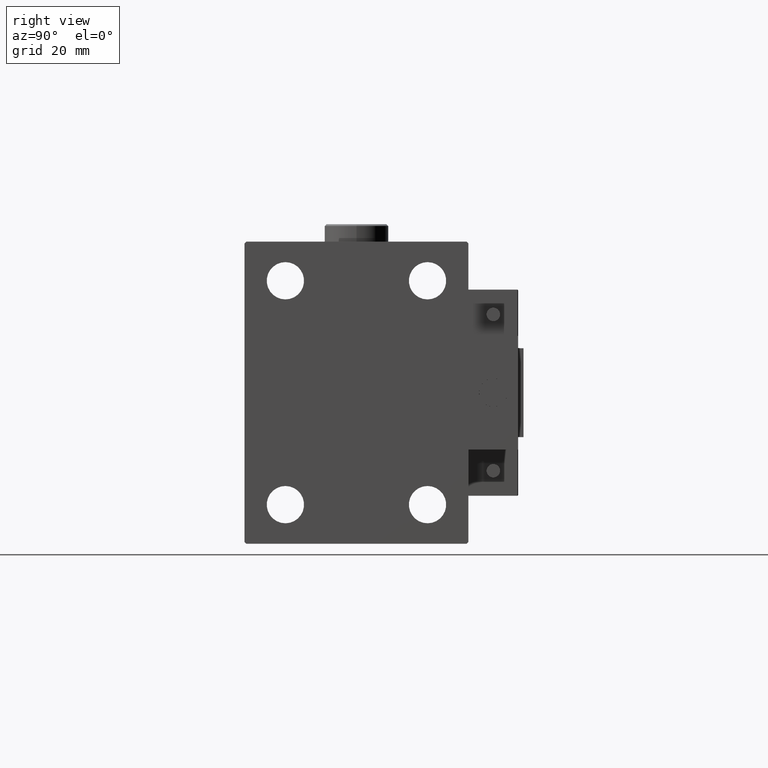
[diagram: clean part render]
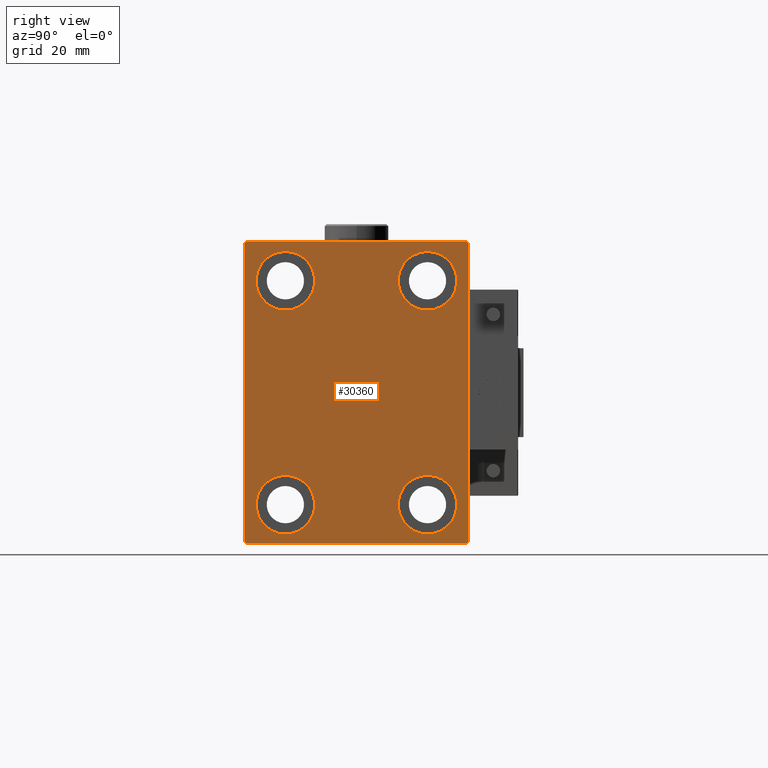
[diagram: same view with one face highlighted and labeled with its STEP entity id]
A machine part, right view. The second image highlights one B-rep face of the part: STEP entity #30360.
In plain terms, the highlighted planar face has unit normal (1, 0, 0).
Its self-contained STEP definition (entity closure, byte-faithful):
#423 = LINE ( 'NONE', #16322, #2768 ) ;
#486 = CARTESIAN_POINT ( 'NONE',  ( 93.00000000000000000, 31.50000000000001421, -42.50000000000000711 ) ) ;
#1414 = ORIENTED_EDGE ( 'NONE', *, *, #39229, .T. ) ;
#1486 = DIRECTION ( 'NONE',  ( -1.000000000000000000, -0.000000000000000000, -0.000000000000000000 ) ) ;
#1683 = LINE ( 'NONE', #29292, #43682 ) ;
#1881 = VERTEX_POINT ( 'NONE', #5973 ) ;
#2275 = CIRCLE ( 'NONE', #18919, 8.250000000000000000 ) ;
#2688 = ORIENTED_EDGE ( 'NONE', *, *, #47703, .T. ) ;
#2768 = VECTOR ( 'NONE', #28289, 999.9999999999998863 ) ;
#3205 = DIRECTION ( 'NONE',  ( -1.000000000000000000, -0.000000000000000000, -0.000000000000000000 ) ) ;
#3642 = CARTESIAN_POINT ( 'NONE',  ( 93.00000000000000000, 31.00000000000002842, -42.50000000000000711 ) ) ;
#4233 = FACE_BOUND ( 'NONE', #35369, .T. ) ;
#4412 = VERTEX_POINT ( 'NONE', #48780 ) ;
#4499 = CARTESIAN_POINT ( 'NONE',  ( 93.00000000000000000, -20.00000000000000355, -39.74999999999999289 ) ) ;
#4978 = ORIENTED_EDGE ( 'NONE', *, *, #19815, .T. ) ;
#5005 = CARTESIAN_POINT ( 'NONE',  ( 93.00000000000000000, 36.74999999999958789, -36.75000000000061107 ) ) ;
#5352 = EDGE_CURVE ( 'NONE', #5623, #22810, #40972, .T. ) ;
#5623 = VERTEX_POINT ( 'NONE', #3642 ) ;
#5705 = EDGE_CURVE ( 'NONE', #50540, #32148, #18524, .T. ) ;
#5722 = AXIS2_PLACEMENT_3D ( 'NONE', #26902, #3205, #15192 ) ;
#5973 = CARTESIAN_POINT ( 'NONE',  ( 93.00000000000000000, 20.00000000000000355, 23.25000000000000355 ) ) ;
#6065 = CARTESIAN_POINT ( 'NONE',  ( 93.00000000000000000, 31.50000000000001421, -42.00000000000003553 ) ) ;
#7007 = CARTESIAN_POINT ( 'NONE',  ( 93.00000000000000000, 19.99999999999999645, -23.24999999999999289 ) ) ;
#7486 = CARTESIAN_POINT ( 'NONE',  ( 93.00000000000000000, -19.99999999999999645, 23.25000000000000355 ) ) ;
#8003 = CARTESIAN_POINT ( 'NONE',  ( 93.00000000000000000, -20.00000000000000355, -31.49999999999999289 ) ) ;
#8402 = DIRECTION ( 'NONE',  ( 0.000000000000000000, 0.000000000000000000, -1.000000000000000000 ) ) ;
#8516 = CARTESIAN_POINT ( 'NONE',  ( 93.00000000000000000, -20.00000000000000355, -31.49999999999999289 ) ) ;
#8838 = CARTESIAN_POINT ( 'NONE',  ( 93.00000000000000000, -31.50000000000000000, -42.50000000000000711 ) ) ;
#9104 = CARTESIAN_POINT ( 'NONE',  ( 93.00000000000000000, -19.99999999999999645, 31.50000000000000000 ) ) ;
#9467 = VERTEX_POINT ( 'NONE', #7007 ) ;
#9590 = EDGE_CURVE ( 'NONE', #22810, #26085, #22412, .T. ) ;
#10619 = CARTESIAN_POINT ( 'NONE',  ( 93.00000000000000000, 31.50000000000000000, 42.50000000000000711 ) ) ;
#11068 = ORIENTED_EDGE ( 'NONE', *, *, #47998, .T. ) ;
#11286 = EDGE_LOOP ( 'NONE', ( #19523, #1414, #47932, #4978, #2688, #11825, #30056, #22713 ) ) ;
#11465 = DIRECTION ( 'NONE',  ( 0.000000000000000000, 0.000000000000000000, 1.000000000000000000 ) ) ;
#11825 = ORIENTED_EDGE ( 'NONE', *, *, #5352, .T. ) ;
#12313 = PLANE ( 'NONE',  #39872 ) ;
#12388 = LINE ( 'NONE', #28269, #27103 ) ;
#13065 = CARTESIAN_POINT ( 'NONE',  ( 93.00000000000000000, 19.99999999999999645, -31.49999999999999289 ) ) ;
#13237 = EDGE_CURVE ( 'NONE', #26085, #27977, #423, .T. ) ;
#14175 = ORIENTED_EDGE ( 'NONE', *, *, #39957, .T. ) ;
#14526 = CARTESIAN_POINT ( 'NONE',  ( 93.00000000000000000, -30.99999999999998579, 42.49999999999999289 ) ) ;
#15192 = DIRECTION ( 'NONE',  ( 0.000000000000000000, 0.000000000000000000, 1.000000000000000000 ) ) ;
#15436 = VERTEX_POINT ( 'NONE', #31690 ) ;
#15670 = ORIENTED_EDGE ( 'NONE', *, *, #32656, .T. ) ;
#16239 = FACE_BOUND ( 'NONE', #35060, .T. ) ;
#16322 = CARTESIAN_POINT ( 'NONE',  ( 93.00000000000000000, 36.75000000000044054, 36.74999999999941735 ) ) ;
#16514 = DIRECTION ( 'NONE',  ( -1.000000000000000000, -0.000000000000000000, -0.000000000000000000 ) ) ;
#17085 = DIRECTION ( 'NONE',  ( 0.000000000000000000, -0.7071067811865474617, -0.7071067811865474617 ) ) ;
#17133 = DIRECTION ( 'NONE',  ( 0.000000000000000000, 0.000000000000000000, 1.000000000000000000 ) ) ;
#18524 = CIRCLE ( 'NONE', #45992, 8.249999999999992895 ) ;
#18919 = AXIS2_PLACEMENT_3D ( 'NONE', #13065, #38518, #26506 ) ;
#18959 = VERTEX_POINT ( 'NONE', #25426 ) ;
#19229 = CARTESIAN_POINT ( 'NONE',  ( 93.00000000000000000, 20.00000000000000355, 31.50000000000000000 ) ) ;
#19523 = ORIENTED_EDGE ( 'NONE', *, *, #46903, .T. ) ;
#19678 = VERTEX_POINT ( 'NONE', #29098 ) ;
#19815 = EDGE_CURVE ( 'NONE', #15436, #49175, #22822, .T. ) ;
#20653 = DIRECTION ( 'NONE',  ( -0.000000000000000000, 0.7071067811865573427, 0.7071067811865376918 ) ) ;
#20744 = DIRECTION ( 'NONE',  ( 0.000000000000000000, 0.000000000000000000, -1.000000000000000000 ) ) ;
#21494 = AXIS2_PLACEMENT_3D ( 'NONE', #24823, #16514, #39968 ) ;
#22412 = LINE ( 'NONE', #486, #39248 ) ;
#22713 = ORIENTED_EDGE ( 'NONE', *, *, #13237, .T. ) ;
#22810 = VERTEX_POINT ( 'NONE', #6065 ) ;
#22822 = LINE ( 'NONE', #30378, #35327 ) ;
#23578 = ORIENTED_EDGE ( 'NONE', *, *, #26041, .T. ) ;
#23731 = AXIS2_PLACEMENT_3D ( 'NONE', #8003, #43466, #31710 ) ;
#24471 = LINE ( 'NONE', #8838, #34815 ) ;
#24823 = CARTESIAN_POINT ( 'NONE',  ( 93.00000000000000000, -19.99999999999999645, 31.50000000000000000 ) ) ;
#25011 = ORIENTED_EDGE ( 'NONE', *, *, #39900, .T. ) ;
#25247 = DIRECTION ( 'NONE',  ( 0.000000000000000000, 1.000000000000000000, 0.000000000000000000 ) ) ;
#25426 = CARTESIAN_POINT ( 'NONE',  ( 93.00000000000000000, 20.00000000000000355, 39.74999999999999289 ) ) ;
#26041 = EDGE_CURVE ( 'NONE', #19678, #9467, #2275, .T. ) ;
#26085 = VERTEX_POINT ( 'NONE', #42171 ) ;
#26506 = DIRECTION ( 'NONE',  ( 0.000000000000000000, 0.000000000000000000, 1.000000000000000000 ) ) ;
#26902 = CARTESIAN_POINT ( 'NONE',  ( 93.00000000000000000, 20.00000000000000355, 31.50000000000000000 ) ) ;
#27103 = VECTOR ( 'NONE', #20744, 1000.000000000000000 ) ;
#27977 = VERTEX_POINT ( 'NONE', #31175 ) ;
#28121 = CIRCLE ( 'NONE', #21494, 8.249999999999992895 ) ;
#28269 = CARTESIAN_POINT ( 'NONE',  ( 93.00000000000000000, -31.50000000000000000, 42.49999999999999289 ) ) ;
#28289 = DIRECTION ( 'NONE',  ( -0.000000000000000000, -0.7071067811865376918, 0.7071067811865574537 ) ) ;
#29098 = CARTESIAN_POINT ( 'NONE',  ( 93.00000000000000000, 19.99999999999999645, -39.74999999999999289 ) ) ;
#29161 = DIRECTION ( 'NONE',  ( -1.000000000000000000, -0.000000000000000000, -0.000000000000000000 ) ) ;
#29292 = CARTESIAN_POINT ( 'NONE',  ( 93.00000000000000000, -36.74999999999998579, 36.74999999999998579 ) ) ;
#29410 = EDGE_CURVE ( 'NONE', #1881, #18959, #42338, .T. ) ;
#30056 = ORIENTED_EDGE ( 'NONE', *, *, #9590, .T. ) ;
#30321 = VERTEX_POINT ( 'NONE', #4499 ) ;
#30360 = ADVANCED_FACE ( 'NONE', ( #47764, #4233, #16239, #36031, #48027 ), #12313, .T. ) ;
#30378 = CARTESIAN_POINT ( 'NONE',  ( 93.00000000000000000, -36.75000000000045475, -36.74999999999943867 ) ) ;
#30431 = LINE ( 'NONE', #10619, #43112 ) ;
#30627 = DIRECTION ( 'NONE',  ( -0.000000000000000000, 0.7071067811865376918, -0.7071067811865573427 ) ) ;
#31175 = CARTESIAN_POINT ( 'NONE',  ( 93.00000000000000000, 31.00000000000000000, 42.50000000000000711 ) ) ;
#31690 = CARTESIAN_POINT ( 'NONE',  ( 93.00000000000000000, -31.50000000000000000, -42.00000000000002132 ) ) ;
#31710 = DIRECTION ( 'NONE',  ( 0.000000000000000000, 0.000000000000000000, 1.000000000000000000 ) ) ;
#32148 = VERTEX_POINT ( 'NONE', #45804 ) ;
#32656 = EDGE_CURVE ( 'NONE', #32148, #50540, #28121, .T. ) ;
#33715 = EDGE_LOOP ( 'NONE', ( #14175, #11068 ) ) ;
#34680 = CARTESIAN_POINT ( 'NONE',  ( 93.00000000000000000, -20.00000000000000355, -23.24999999999999289 ) ) ;
#34815 = VECTOR ( 'NONE', #25247, 1000.000000000000000 ) ;
#34989 = ORIENTED_EDGE ( 'NONE', *, *, #51168, .T. ) ;
#35060 = EDGE_LOOP ( 'NONE', ( #50258, #25011 ) ) ;
#35327 = VECTOR ( 'NONE', #30627, 1000.000000000000114 ) ;
#35369 = EDGE_LOOP ( 'NONE', ( #50197, #15670 ) ) ;
#36031 = FACE_BOUND ( 'NONE', #33715, .T. ) ;
#36248 = CIRCLE ( 'NONE', #42897, 8.249999999999992895 ) ;
#36335 = VERTEX_POINT ( 'NONE', #34680 ) ;
#36504 = CIRCLE ( 'NONE', #50634, 8.250000000000000000 ) ;
#37772 = VERTEX_POINT ( 'NONE', #14526 ) ;
#38403 = CARTESIAN_POINT ( 'NONE',  ( 93.00000000000000000, -31.00000000000002842, -42.50000000000000711 ) ) ;
#38518 = DIRECTION ( 'NONE',  ( -1.000000000000000000, -0.000000000000000000, -0.000000000000000000 ) ) ;
#39229 = EDGE_CURVE ( 'NONE', #37772, #4412, #1683, .T. ) ;
#39248 = VECTOR ( 'NONE', #44002, 1000.000000000000000 ) ;
#39872 = AXIS2_PLACEMENT_3D ( 'NONE', #44381, #44119, #8402 ) ;
#39883 = DIRECTION ( 'NONE',  ( -1.000000000000000000, -0.000000000000000000, -0.000000000000000000 ) ) ;
#39900 = EDGE_CURVE ( 'NONE', #18959, #1881, #36248, .T. ) ;
#39957 = EDGE_CURVE ( 'NONE', #30321, #36335, #51221, .T. ) ;
#39968 = DIRECTION ( 'NONE',  ( 0.000000000000000000, 0.000000000000000000, 1.000000000000000000 ) ) ;
#40972 = LINE ( 'NONE', #5005, #42626 ) ;
#41270 = EDGE_CURVE ( 'NONE', #4412, #15436, #12388, .T. ) ;
#42171 = CARTESIAN_POINT ( 'NONE',  ( 93.00000000000000000, 31.50000000000000000, 41.99999999999999289 ) ) ;
#42338 = CIRCLE ( 'NONE', #5722, 8.249999999999992895 ) ;
#42626 = VECTOR ( 'NONE', #20653, 1000.000000000000114 ) ;
#42897 = AXIS2_PLACEMENT_3D ( 'NONE', #19229, #51278, #43214 ) ;
#43112 = VECTOR ( 'NONE', #49228, 1000.000000000000000 ) ;
#43214 = DIRECTION ( 'NONE',  ( 0.000000000000000000, 0.000000000000000000, 1.000000000000000000 ) ) ;
#43466 = DIRECTION ( 'NONE',  ( -1.000000000000000000, -0.000000000000000000, -0.000000000000000000 ) ) ;
#43682 = VECTOR ( 'NONE', #17085, 1000.000000000000114 ) ;
#44002 = DIRECTION ( 'NONE',  ( 0.000000000000000000, -1.632680918566406300E-16, 1.000000000000000000 ) ) ;
#44119 = DIRECTION ( 'NONE',  ( 1.000000000000000000, 0.000000000000000000, 0.000000000000000000 ) ) ;
#44381 = CARTESIAN_POINT ( 'NONE',  ( 93.00000000000000000, 0.000000000000000000, 0.000000000000000000 ) ) ;
#44738 = EDGE_LOOP ( 'NONE', ( #23578, #34989 ) ) ;
#45069 = DIRECTION ( 'NONE',  ( 0.000000000000000000, 0.000000000000000000, 1.000000000000000000 ) ) ;
#45804 = CARTESIAN_POINT ( 'NONE',  ( 93.00000000000000000, -19.99999999999999645, 39.74999999999999289 ) ) ;
#45992 = AXIS2_PLACEMENT_3D ( 'NONE', #9104, #29161, #45069 ) ;
#46903 = EDGE_CURVE ( 'NONE', #27977, #37772, #30431, .T. ) ;
#47703 = EDGE_CURVE ( 'NONE', #49175, #5623, #24471, .T. ) ;
#47764 = FACE_BOUND ( 'NONE', #44738, .T. ) ;
#47932 = ORIENTED_EDGE ( 'NONE', *, *, #41270, .T. ) ;
#47998 = EDGE_CURVE ( 'NONE', #36335, #30321, #49832, .T. ) ;
#48027 = FACE_OUTER_BOUND ( 'NONE', #11286, .T. ) ;
#48780 = CARTESIAN_POINT ( 'NONE',  ( 93.00000000000000000, -31.50000000000000000, 41.99999999999997868 ) ) ;
#49017 = AXIS2_PLACEMENT_3D ( 'NONE', #8516, #1486, #17133 ) ;
#49175 = VERTEX_POINT ( 'NONE', #38403 ) ;
#49228 = DIRECTION ( 'NONE',  ( 0.000000000000000000, -1.000000000000000000, -2.202823461557850341E-16 ) ) ;
#49832 = CIRCLE ( 'NONE', #49017, 8.250000000000000000 ) ;
#50197 = ORIENTED_EDGE ( 'NONE', *, *, #5705, .T. ) ;
#50258 = ORIENTED_EDGE ( 'NONE', *, *, #29410, .T. ) ;
#50540 = VERTEX_POINT ( 'NONE', #7486 ) ;
#50634 = AXIS2_PLACEMENT_3D ( 'NONE', #50838, #39883, #11465 ) ;
#50838 = CARTESIAN_POINT ( 'NONE',  ( 93.00000000000000000, 19.99999999999999645, -31.49999999999999289 ) ) ;
#51168 = EDGE_CURVE ( 'NONE', #9467, #19678, #36504, .T. ) ;
#51221 = CIRCLE ( 'NONE', #23731, 8.250000000000000000 ) ;
#51278 = DIRECTION ( 'NONE',  ( -1.000000000000000000, -0.000000000000000000, -0.000000000000000000 ) ) ;